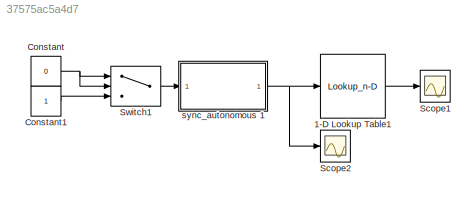
MODEL slx_37575ac5a4d7
KIND model
CONFIG AbsTol = auto
CONFIG EnableMultiTasking = on
CONFIG FixedStep = auto
CONFIG MaxStep = auto
CONFIG MinStep = auto
CONFIG RelTol = 1e-3
CONFIG SampleTimeConstraint = Unconstrained
CONFIG Solver = FixedStepAuto
CONFIG SolverName = FixedStepAuto
CONFIG StartTime = 0.0
CONFIG StopTime = 30
BLOCK [Lookup_n-D] 1-D Lookup Table1
  BreakpointsForDimension1 = [1,2,3,4,5,6,7,8,9]
  InternalRulePriority = Speed
  NumberOfTableDimensions = 1
  Ports = [1, 1]
  RndMeth = Simplest
  Table = [0,0,0,0,0,90,0,-90,0]
BLOCK [Constant] Constant
  Value = 0
BLOCK [Constant] Constant1
BLOCK [Scope] Scope1
  Floating = off
  NumInputPorts = 1
  Ports = [1]
  ScopeSpecificationString = Simulink.scopes.TimeScopeBlockCfg('CurrentConfiguration', extmgr.ConfigurationSet(extmgr.Configuration('Core','General UI',true),extmgr.Configuration('Core','Source UI',true),extmgr.Configuration('Sources','WiredSimulink',true,'DataLoggingVariableName','ScopeData2'),extmgr.Configuration('Visuals','Time Domain',true,'SerializedDisplays',{struct('MinYLimReal','-112.5','MaxYLimReal','112.5','YLabelRe...<+1398ch>
BLOCK [Scope] Scope2
  Floating = off
  NumInputPorts = 1
  Ports = [1]
  ScopeSpecificationString = Simulink.scopes.TimeScopeBlockCfg('CurrentConfiguration', extmgr.ConfigurationSet(extmgr.Configuration('Core','General UI',true),extmgr.Configuration('Core','Source UI',true),extmgr.Configuration('Sources','WiredSimulink',true,'DataLoggingVariableName','ScopeData3'),extmgr.Configuration('Visuals','Time Domain',true,'SerializedDisplays',{struct('MinYLimReal','-1.125','MaxYLimReal','10.125','YLabelR...<+1426ch>
BLOCK [Switch] Switch1
  Criteria = u2 ~= 0
  InputSameDT = off
  SaturateOnIntegerOverflow = off
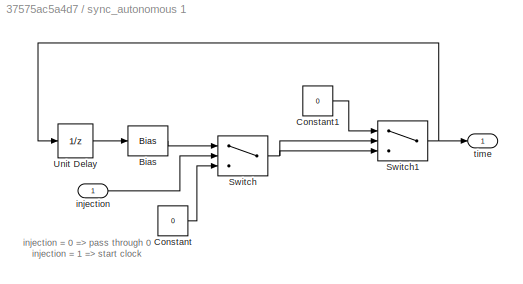
BLOCK [SubSystem] sync_autonomous 1
  Ports = [1, 1]
  RequestExecContextInheritance = off
BLOCK [Bias] sync_autonomous 1/Bias
  Bias = 1
  SaturateOnIntegerOverflow = off
BLOCK [Constant] sync_autonomous 1/Constant
  SampleTime = -1
  Value = 0
BLOCK [Constant] sync_autonomous 1/Constant1
  SampleTime = -1
  Value = 0
BLOCK [Switch] sync_autonomous 1/Switch
  Criteria = u2 ~= 0
  InputSameDT = off
  SaturateOnIntegerOverflow = off
BLOCK [Switch] sync_autonomous 1/Switch1
  Criteria = u2 > Threshold
  InputSameDT = off
  SaturateOnIntegerOverflow = off
  Threshold = 9
BLOCK [UnitDelay] sync_autonomous 1/Unit Delay
  InputProcessing = Elements as channels (sample based)
  SampleTime = -1
BLOCK [Inport] sync_autonomous 1/injection 
  IconDisplay = Port number
BLOCK [Outport] sync_autonomous 1/time 
  IconDisplay = Port number
ANNOTATION sync_autonomous 1: injection = 0 => pass through 0 injection = 1 => start clock
LINE 1-D Lookup Table1:1 -> Scope1:1
LINE Constant1:1 -> Switch1:3
NET Constant:1 -> Switch1:1, Switch1:2
LINE Switch1:1 -> sync_autonomous 1:1
LINE sync_autonomous 1/Bias:1 -> sync_autonomous 1/Switch:1
LINE sync_autonomous 1/Constant1:1 -> sync_autonomous 1/Switch1:1
LINE sync_autonomous 1/Constant:1 -> sync_autonomous 1/Switch:3
NET sync_autonomous 1/Switch1:1 -> sync_autonomous 1/Unit Delay:1, sync_autonomous 1/time :1
NET sync_autonomous 1/Switch:1 -> sync_autonomous 1/Switch1:2, sync_autonomous 1/Switch1:3
LINE sync_autonomous 1/Unit Delay:1 -> sync_autonomous 1/Bias:1
LINE sync_autonomous 1/injection :1 -> sync_autonomous 1/Switch:2
NET sync_autonomous 1:1 -> 1-D Lookup Table1:1, Scope2:1
note: NET lines group one-source signal fan-out (src -> all destinations, sorted); 1:1 wires keep LINE
